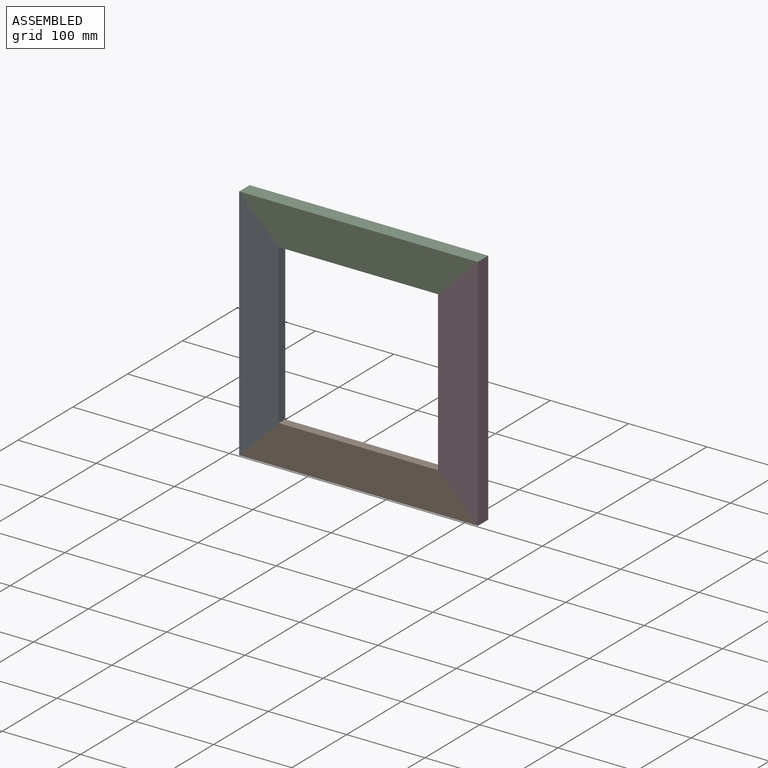
[diagram: assembled view]
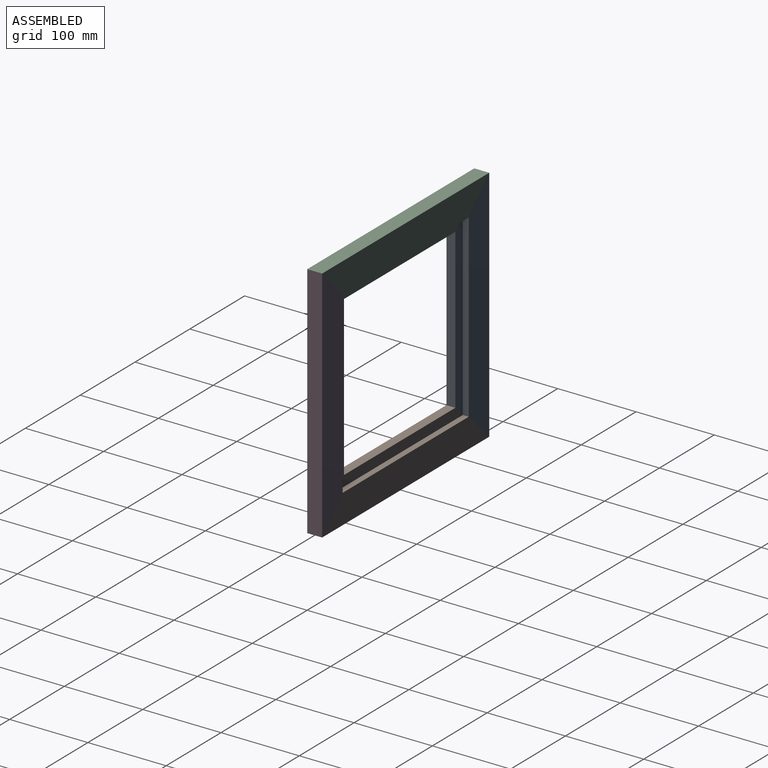
[diagram: assembled view, second angle]
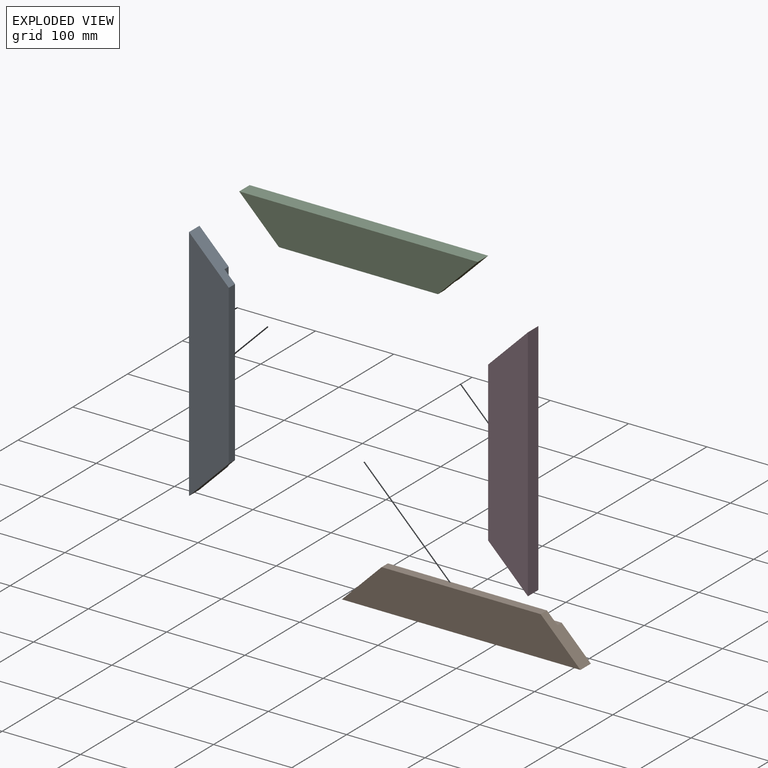
[diagram: exploded view]
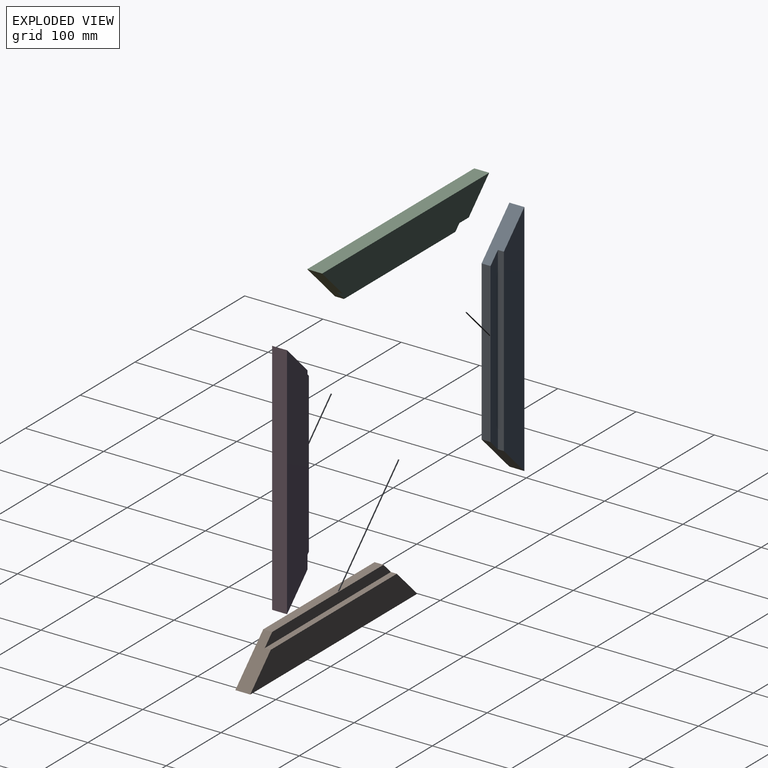
[diagram: exploded view, second angle]
ASSEMBLY  parts=4 mates=7
PART A: 8 faces, bbox 304.8x19.1x50.8 mm
  f0: plane 50.8x50.8mm, normal (0.71,0,-0.71), area 1223.4mm2, adj f2,f3,f4,f5,f6,f7
  f1: plane 50.8x50.8mm, normal (-0.71,0,-0.71), area 1223.4mm2, adj f2,f3,f4,f5,f6,f7
  f2: plane 203.2x11.43mm, normal (0,0,-1), area 2322.6mm2, adj f0,f1,f3,f7
  f3: plane 304.8x50.8mm, normal (0,-1,0), area 12903.2mm2, adj f0,f1,f2,f5
  f4: plane 304.8x37.33mm, normal (0,1,0), area 9984.6mm2, adj f0,f1,f5,f6
  f5: plane 304.8x19.05mm, normal (0,0,1), area 5806.4mm2, adj f0,f1,f3,f4
  f6: plane 230.14x7.62mm, normal (0,0,-1), area 1753.7mm2, adj f0,f1,f4,f7
  f7: plane 230.14x13.47mm, normal (0,1,0), area 2918.6mm2, adj f0,f1,f2,f6
PART B: same geometry as A
PART C: same geometry as A
PART D: same geometry as A
PLACE A rot(axis=(0,-1,0),90deg) t=(231.46,-220.93,-337.26)mm
PLACE B rot(axis=(0,-1,0),180deg) t=(485.46,-220.93,-286.46)mm
PLACE C t=(180.66,-220.93,-83.26)mm
PLACE D rot(axis=(0,1,0),90deg) t=(434.66,-220.93,-32.46)mm
MATE parallel B.f0 <-> A.f1  axis (-0.71,0,0.71) through (203.84,-231.14,-314.07)mm
MATE parallel D.f1 <-> C.f0  axis (-0.71,0,0.71) through (462.27,-231.14,-55.64)mm
MATE parallel A.f0 <-> C.f1  axis (0.71,0,0.71) through (203.84,-231.14,-55.64)mm
MATE fastened C.f0 <-> D.f1  axis (0.71,0,-0.71) through (462.27,-231.14,-55.64)mm
MATE fastened A.f0 <-> C.f1  axis (0.71,0,0.71) through (203.84,-231.14,-55.64)mm
MATE fastened B.f0 <-> A.f1  axis (-0.71,0,0.71) through (203.84,-231.14,-314.07)mm
MATE parallel D.f1 <-> C.f0  axis (-0.71,0,0.71) through (462.27,-231.14,-55.64)mm
